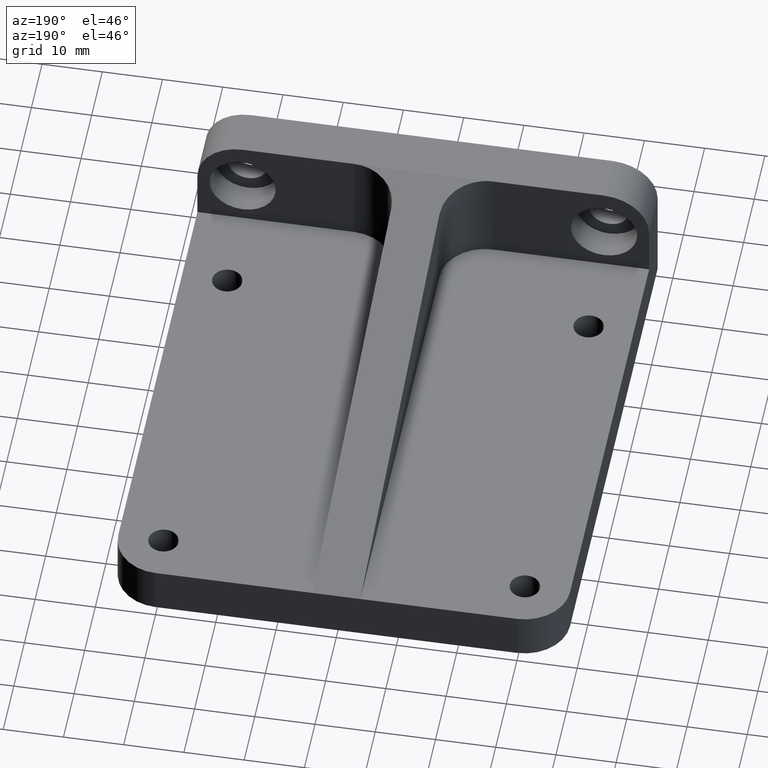
[diagram: clean part render]
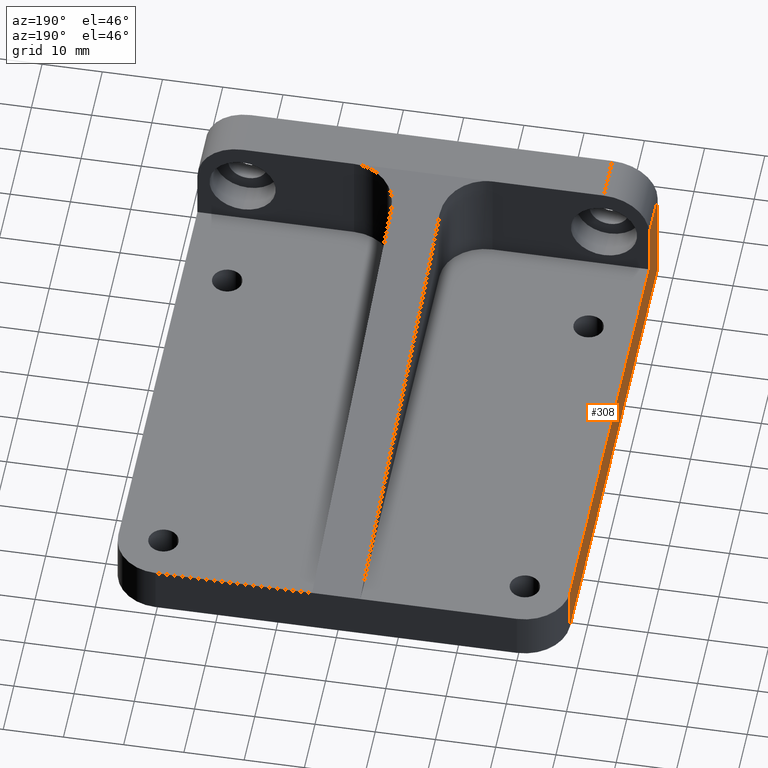
[diagram: same view with one face highlighted and labeled with its STEP entity id]
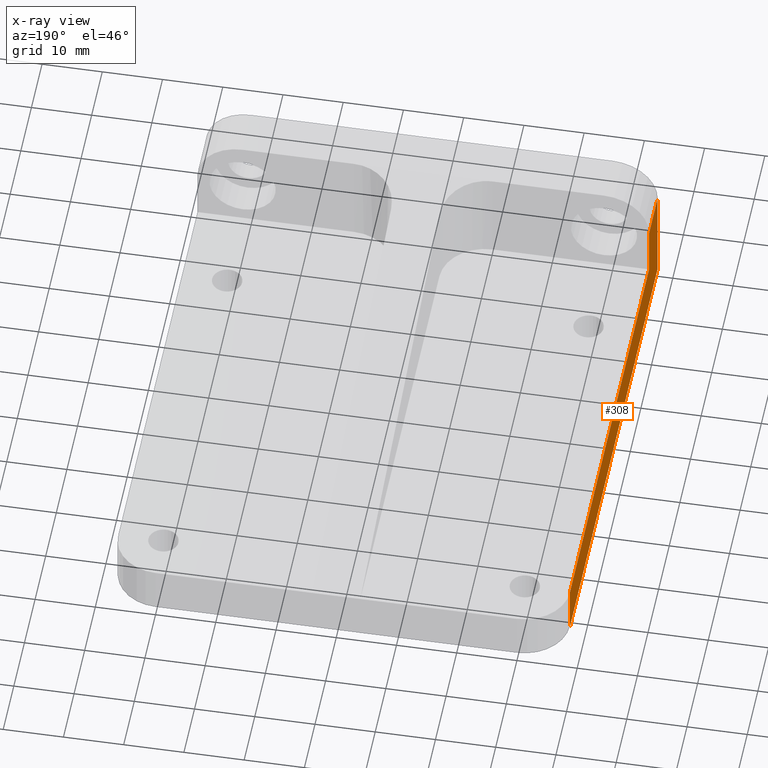
[diagram: x-ray of the same camera — body ghosted, the highlighted face saturated]
A machine part, auxiliary view. The second image highlights one B-rep face of the part: STEP entity #308.
The next image is the same camera in x-ray: the body ghosted, the highlighted face saturated — about 0% of this face is hidden behind the body in this view.
In plain terms, the highlighted planar face has unit normal (-1, 0, 0).
Its self-contained STEP definition (entity closure, byte-faithful):
#2 = LINE ( 'NONE', #1134, #423 ) ;
#54 = EDGE_CURVE ( 'NONE', #1075, #508, #706, .T. ) ;
#138 = CARTESIAN_POINT ( 'NONE',  ( -37.50000000000000000, 7.999999999999996447, 16.50000000000000000 ) ) ;
#143 = EDGE_CURVE ( 'NONE', #1032, #1075, #931, .T. ) ;
#235 = LINE ( 'NONE', #138, #1192 ) ;
#273 = VERTEX_POINT ( 'NONE', #1234 ) ;
#278 = DIRECTION ( 'NONE',  ( -0.0000000000000000000, -0.0000000000000000000, 1.000000000000000000 ) ) ;
#298 = EDGE_CURVE ( 'NONE', #1219, #774, #2, .T. ) ;
#301 = DIRECTION ( 'NONE',  ( 0.0000000000000000000, 1.000000000000000000, 0.0000000000000000000 ) ) ;
#308 = ADVANCED_FACE ( 'NONE', ( #1161 ), #716, .T. ) ;
#336 = CARTESIAN_POINT ( 'NONE',  ( -37.50000000000000000, 0.0000000000000000000, 0.0000000000000000000 ) ) ;
#423 = VECTOR ( 'NONE', #278, 1000.000000000000000 ) ;
#435 = VECTOR ( 'NONE', #301, 1000.000000000000000 ) ;
#442 = EDGE_CURVE ( 'NONE', #273, #508, #1027, .T. ) ;
#462 = CARTESIAN_POINT ( 'NONE',  ( -37.50000000000000000, 82.49999999999995737, 0.0000000000000000000 ) ) ;
#482 = DIRECTION ( 'NONE',  ( -0.0000000000000000000, 0.0000000000000000000, -1.000000000000000000 ) ) ;
#494 = ORIENTED_EDGE ( 'NONE', *, *, #711, .T. ) ;
#500 = CARTESIAN_POINT ( 'NONE',  ( -37.50000000000000000, 0.0000000000000000000, 0.0000000000000000000 ) ) ;
#508 = VERTEX_POINT ( 'NONE', #462 ) ;
#603 = CARTESIAN_POINT ( 'NONE',  ( -37.50000000000000000, 0.0000000000000000000, 0.0000000000000000000 ) ) ;
#626 = EDGE_LOOP ( 'NONE', ( #917, #494, #1229, #705, #800, #891 ) ) ;
#655 = CARTESIAN_POINT ( 'NONE',  ( -37.50000000000000000, -2.020667218593133100E-15, 16.50000000000000000 ) ) ;
#673 = VECTOR ( 'NONE', #728, 1000.000000000000000 ) ;
#674 = CARTESIAN_POINT ( 'NONE',  ( -37.50000000000000000, 82.49999999999998579, 0.0000000000000000000 ) ) ;
#681 = DIRECTION ( 'NONE',  ( 0.0000000000000000000, 0.0000000000000000000, 1.000000000000000000 ) ) ;
#694 = DIRECTION ( 'NONE',  ( -0.0000000000000000000, 1.000000000000000000, -0.0000000000000000000 ) ) ;
#705 = ORIENTED_EDGE ( 'NONE', *, *, #864, .T. ) ;
#706 = LINE ( 'NONE', #806, #435 ) ;
#711 = EDGE_CURVE ( 'NONE', #1032, #774, #235, .T. ) ;
#716 = PLANE ( 'NONE',  #888 ) ;
#728 = DIRECTION ( 'NONE',  ( -0.0000000000000000000, 1.224646799147353207E-16, -1.000000000000000000 ) ) ;
#750 = CARTESIAN_POINT ( 'NONE',  ( -37.50000000000000000, 7.999999999999996447, 16.50000000000000000 ) ) ;
#774 = VERTEX_POINT ( 'NONE', #750 ) ;
#798 = CARTESIAN_POINT ( 'NONE',  ( -37.50000000000000000, 7.999999999999996447, 8.000000000000007105 ) ) ;
#800 = ORIENTED_EDGE ( 'NONE', *, *, #442, .T. ) ;
#806 = CARTESIAN_POINT ( 'NONE',  ( -37.50000000000000000, 0.0000000000000000000, 0.0000000000000000000 ) ) ;
#808 = CARTESIAN_POINT ( 'NONE',  ( -37.50000000000000000, 7.999999999999996447, 8.000000000000007105 ) ) ;
#864 = EDGE_CURVE ( 'NONE', #1219, #273, #1180, .T. ) ;
#888 = AXIS2_PLACEMENT_3D ( 'NONE', #500, #1170, #681 ) ;
#891 = ORIENTED_EDGE ( 'NONE', *, *, #54, .F. ) ;
#917 = ORIENTED_EDGE ( 'NONE', *, *, #143, .F. ) ;
#931 = LINE ( 'NONE', #336, #673 ) ;
#991 = DIRECTION ( 'NONE',  ( 0.0000000000000000000, 1.000000000000000000, -0.0000000000000000000 ) ) ;
#1027 = LINE ( 'NONE', #674, #1046 ) ;
#1032 = VERTEX_POINT ( 'NONE', #655 ) ;
#1046 = VECTOR ( 'NONE', #482, 1000.000000000000000 ) ;
#1075 = VERTEX_POINT ( 'NONE', #603 ) ;
#1134 = CARTESIAN_POINT ( 'NONE',  ( -37.50000000000000000, 7.999999999999996447, -88.57906073107798761 ) ) ;
#1161 = FACE_OUTER_BOUND ( 'NONE', #626, .T. ) ;
#1170 = DIRECTION ( 'NONE',  ( -1.000000000000000000, 0.0000000000000000000, 0.0000000000000000000 ) ) ;
#1180 = LINE ( 'NONE', #808, #1231 ) ;
#1192 = VECTOR ( 'NONE', #694, 1000.000000000000000 ) ;
#1219 = VERTEX_POINT ( 'NONE', #798 ) ;
#1229 = ORIENTED_EDGE ( 'NONE', *, *, #298, .F. ) ;
#1231 = VECTOR ( 'NONE', #991, 1000.000000000000000 ) ;
#1234 = CARTESIAN_POINT ( 'NONE',  ( -37.50000000000000000, 82.49999999999998579, 8.000000000000007105 ) ) ;